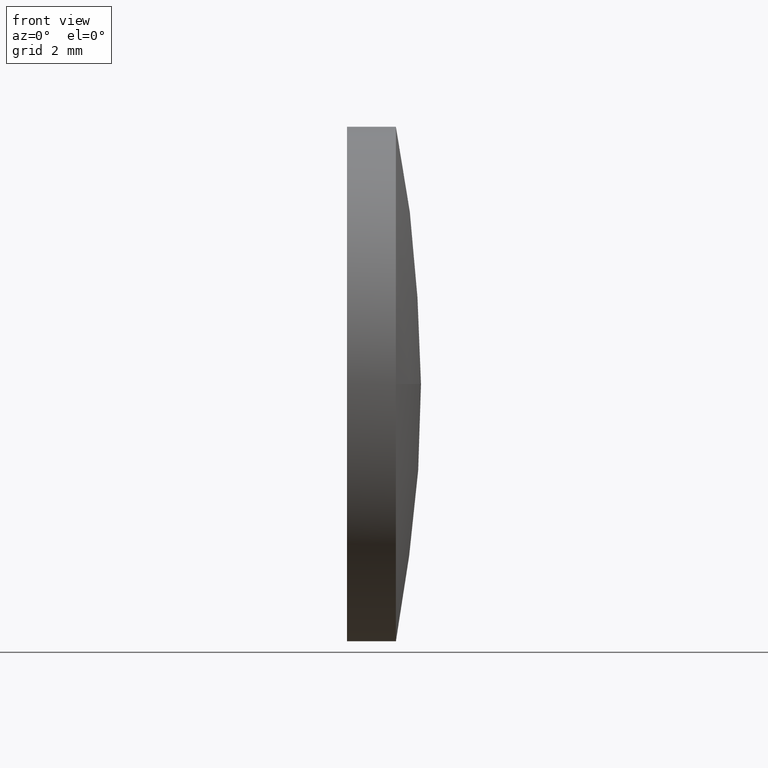
[diagram: clean part render]
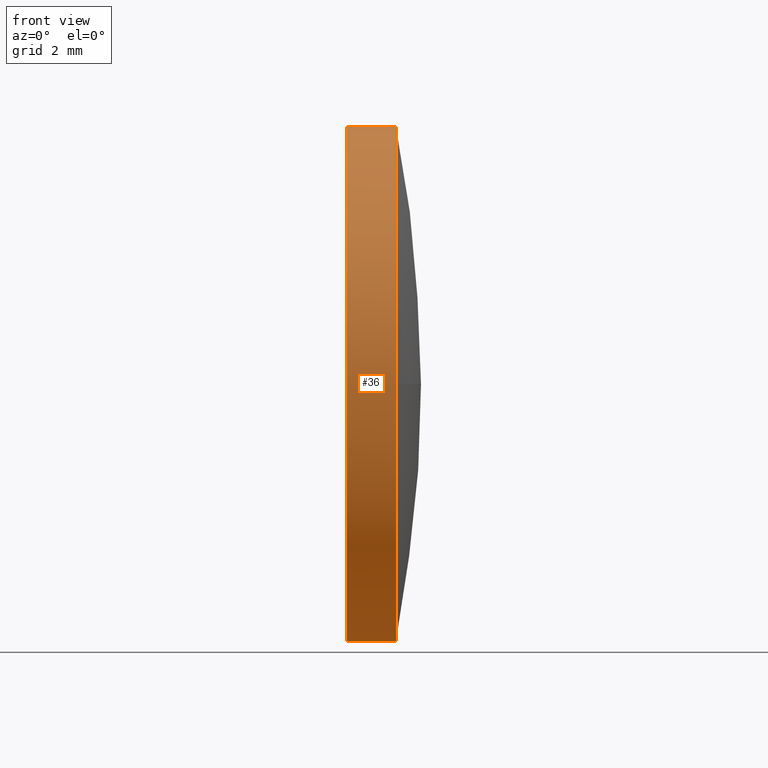
[diagram: same view with one face highlighted and labeled with its STEP entity id]
A machine part, front view. The second image highlights one B-rep face of the part: STEP entity #36.
In plain terms, the highlighted cylindrical surface (partial cylindrical patch) has radius 8 mm, axis along (-1, -0, -0).
Its self-contained STEP definition (entity closure, byte-faithful):
#1 = CARTESIAN_POINT ( 'NONE',  ( 799.2693006300039500, 227.0208925470877000, 0.0000000000000000000 ) ) ;
#12 = DIRECTION ( 'NONE',  ( 0.0000000000000000000, 0.0000000000000000000, 1.000000000000000000 ) ) ;
#13 = DIRECTION ( 'NONE',  ( -1.000000000000000000, -0.0000000000000000000, -0.0000000000000000000 ) ) ;
#14 = EDGE_CURVE ( 'NONE', #33, #175, #99, .T. ) ;
#15 = DIRECTION ( 'NONE',  ( -1.000000000000000000, -0.0000000000000000000, -0.0000000000000000000 ) ) ;
#16 = CARTESIAN_POINT ( 'NONE',  ( 800.7893006300039400, 219.0208925470879300, 0.0000000000000000000 ) ) ;
#18 = AXIS2_PLACEMENT_3D ( 'NONE', #46, #28, #148 ) ;
#19 = CARTESIAN_POINT ( 'NONE',  ( 800.7893006300039400, 227.0208925470877000, 7.999999999999979600 ) ) ;
#21 = ORIENTED_EDGE ( 'NONE', *, *, #66, .F. ) ;
#22 = CYLINDRICAL_SURFACE ( 'NONE', #152, 7.999999999999979600 ) ;
#24 = VERTEX_POINT ( 'NONE', #89 ) ;
#28 = DIRECTION ( 'NONE',  ( -1.000000000000000000, -0.0000000000000000000, -0.0000000000000000000 ) ) ;
#33 = VERTEX_POINT ( 'NONE', #16 ) ;
#36 = ADVANCED_FACE ( 'NONE', ( #142 ), #22, .T. ) ;
#41 = ORIENTED_EDGE ( 'NONE', *, *, #14, .T. ) ;
#46 = CARTESIAN_POINT ( 'NONE',  ( 800.7893006300039400, 227.0208925470877000, 0.0000000000000000000 ) ) ;
#50 = AXIS2_PLACEMENT_3D ( 'NONE', #1, #13, #12 ) ;
#53 = DIRECTION ( 'NONE',  ( -1.000000000000000000, -0.0000000000000000000, -0.0000000000000000000 ) ) ;
#54 = CARTESIAN_POINT ( 'NONE',  ( 799.2693006300039500, 227.0208925470877000, 7.999999999999979600 ) ) ;
#59 = LINE ( 'NONE', #159, #93 ) ;
#64 = CIRCLE ( 'NONE', #50, 7.999999999999979600 ) ;
#66 = EDGE_CURVE ( 'NONE', #157, #24, #59, .T. ) ;
#67 = VERTEX_POINT ( 'NONE', #54 ) ;
#78 = EDGE_CURVE ( 'NONE', #24, #67, #64, .T. ) ;
#80 = CARTESIAN_POINT ( 'NONE',  ( 800.7893006300039400, 227.0208925470877000, -7.999999999999979600 ) ) ;
#84 = ORIENTED_EDGE ( 'NONE', *, *, #133, .T. ) ;
#86 = DIRECTION ( 'NONE',  ( 0.0000000000000000000, 0.0000000000000000000, 1.000000000000000000 ) ) ;
#87 = EDGE_LOOP ( 'NONE', ( #21, #84, #41, #151, #153 ) ) ;
#89 = CARTESIAN_POINT ( 'NONE',  ( 799.2693006300039500, 227.0208925470877000, -7.999999999999979600 ) ) ;
#93 = VECTOR ( 'NONE', #15, 1000.000000000000000 ) ;
#99 = CIRCLE ( 'NONE', #171, 7.999999999999979600 ) ;
#100 = CARTESIAN_POINT ( 'NONE',  ( 797.6213281570125000, 227.0208925470877000, 0.0000000000000000000 ) ) ;
#103 = CARTESIAN_POINT ( 'NONE',  ( 797.6213281570125000, 227.0208925470877000, 7.999999999999979600 ) ) ;
#133 = EDGE_CURVE ( 'NONE', #157, #33, #182, .T. ) ;
#138 = LINE ( 'NONE', #103, #186 ) ;
#142 = FACE_OUTER_BOUND ( 'NONE', #87, .T. ) ;
#145 = DIRECTION ( 'NONE',  ( -1.000000000000000000, -0.0000000000000000000, -0.0000000000000000000 ) ) ;
#148 = DIRECTION ( 'NONE',  ( 0.0000000000000000000, 0.0000000000000000000, 1.000000000000000000 ) ) ;
#151 = ORIENTED_EDGE ( 'NONE', *, *, #165, .T. ) ;
#152 = AXIS2_PLACEMENT_3D ( 'NONE', #100, #145, #86 ) ;
#153 = ORIENTED_EDGE ( 'NONE', *, *, #78, .F. ) ;
#157 = VERTEX_POINT ( 'NONE', #80 ) ;
#159 = CARTESIAN_POINT ( 'NONE',  ( 797.6213281570125000, 227.0208925470877000, -7.999999999999979600 ) ) ;
#165 = EDGE_CURVE ( 'NONE', #175, #67, #138, .T. ) ;
#171 = AXIS2_PLACEMENT_3D ( 'NONE', #172, #53, #176 ) ;
#172 = CARTESIAN_POINT ( 'NONE',  ( 800.7893006300039400, 227.0208925470877000, 0.0000000000000000000 ) ) ;
#175 = VERTEX_POINT ( 'NONE', #19 ) ;
#176 = DIRECTION ( 'NONE',  ( 0.0000000000000000000, 0.0000000000000000000, 1.000000000000000000 ) ) ;
#181 = DIRECTION ( 'NONE',  ( -1.000000000000000000, -0.0000000000000000000, -0.0000000000000000000 ) ) ;
#182 = CIRCLE ( 'NONE', #18, 7.999999999999979600 ) ;
#186 = VECTOR ( 'NONE', #181, 1000.000000000000000 ) ;